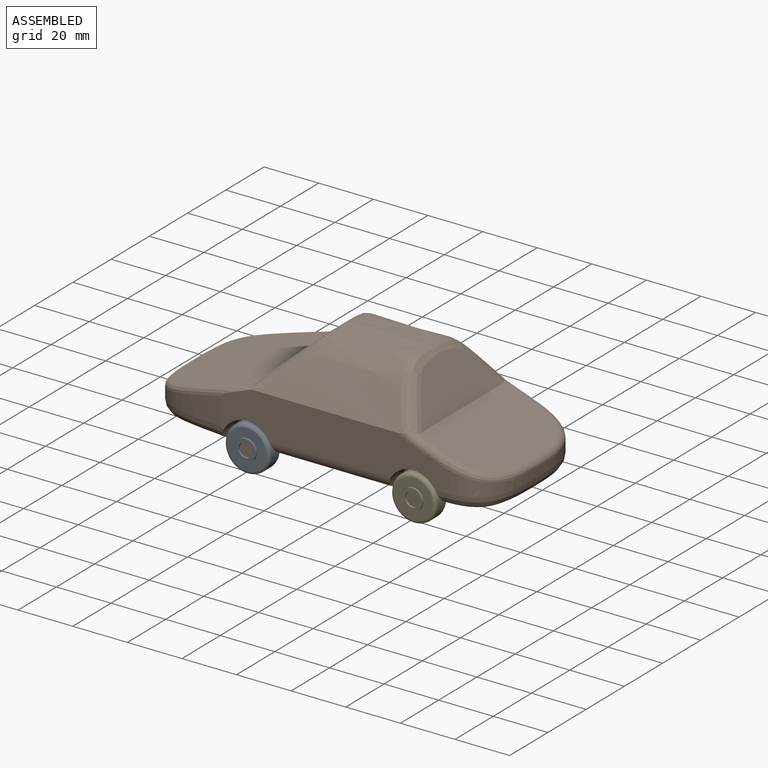
[diagram: assembled view]
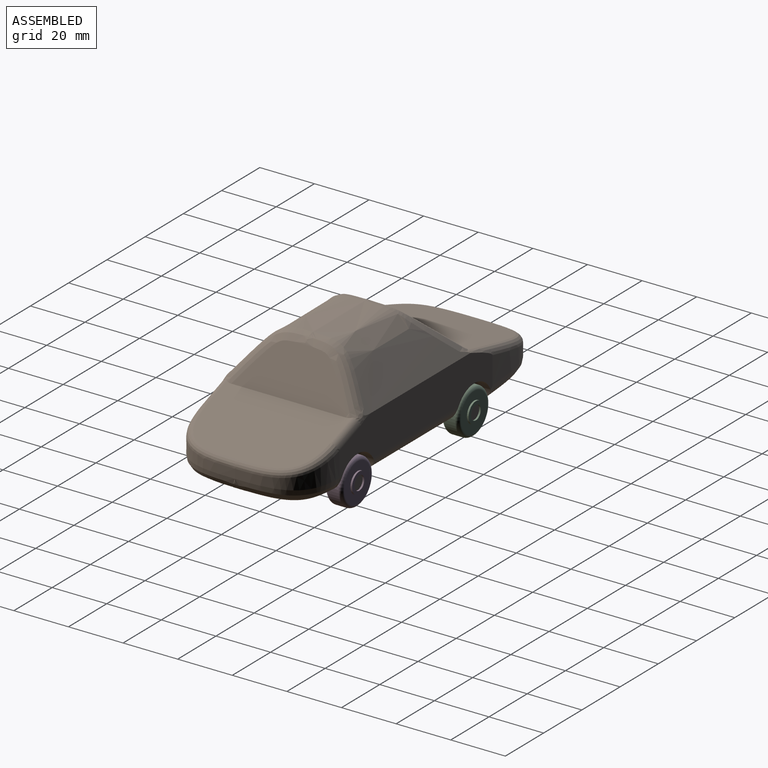
[diagram: assembled view, second angle]
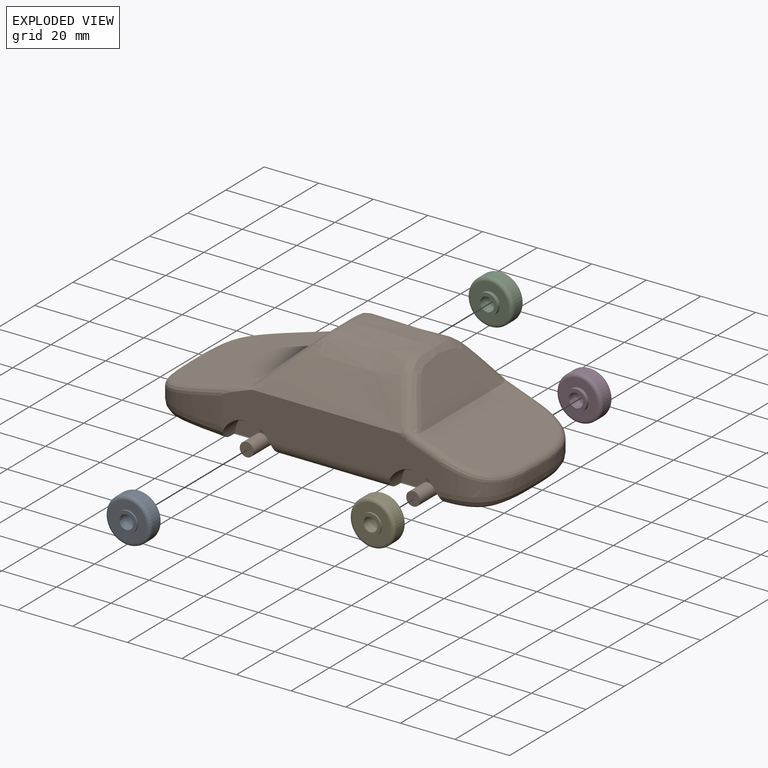
[diagram: exploded view]
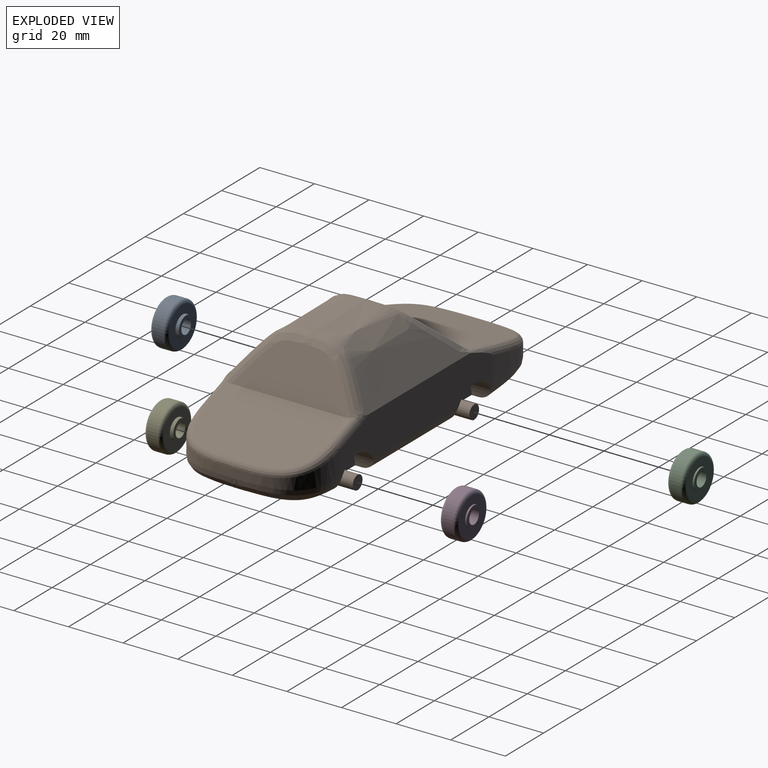
[diagram: exploded view, second angle]
ASSEMBLY  parts=5 mates=8
PART A: 10 faces, bbox 17.9x8.3x17.9 mm
  f0: cylinder r=8.26mm len=16.51mm, axis (0,1,0), area 197.6mm2, adj f8,f9
  f1: plane 13.97x13.97mm, normal (0,-1,0), area 107.7mm2, adj f5,f9
  f2: plane 13.97x13.97mm, normal (0,1,0), area 107.7mm2, adj f3,f8
  f3: cylinder r=3.81mm len=7.62mm, axis (0,1,0), area 15.2mm2, adj f2,f7
  f4: cylinder r=2.54mm len=8.26mm, axis (0,1,0), area 131.7mm2, adj f6,f7
  f5: cylinder r=3.81mm len=7.62mm, axis (0,1,0), area 30.4mm2, adj f1,f6
  f6: plane 7.62x7.62mm, normal (0,-1,0), area 25.3mm2, adj f4,f5
  f7: plane 7.62x7.62mm, normal (0,1,0), area 25.3mm2, adj f3,f4
  f8: torus R=6.99mm, axis (0,-1,0), area 97.7mm2, adj f0,f2
  f9: torus R=6.99mm, axis (0,-1,0), area 97.7mm2, adj f0,f1
PART B: 47 faces, bbox 128.1x60.2x41.8 mm
  f0: plane 40.64x20.32mm, normal (0,0,-1), area 732.3mm2, adj f9,f10,f13,f14,f20,f31,f32
  f1: plane 45.95x27mm, normal (0.34,0,0.94), area 1187.5mm2, adj f6,f35,f36,f40,f41,f42,f43
  f2: plane 81.12x17.26mm, normal (0,-1,0), area 1043.7mm2, adj f10,f12,f23,f26,f28,f30,f32,f34
  f3: plane 48.17x37.77mm, normal (-0.26,0,0.97), area 1585.9mm2, adj f7,f37,f38,f45,f46
  f4: plane 40.61x30.48mm, normal (0,0,-1), area 1102.9mm2, adj f11,f12,f15,f16,f17,f33,f34
  f5: plane 81.11x17.26mm, normal (0,1,0), area 1043.7mm2, adj f14,f16,f24,f25,f27,f29,f31,f33
  f6: plane 41.89x15.22mm, normal (0.87,0,0.5), area 520.3mm2, adj f1,f35,f36
  f7: plane 43.67x17.59mm, normal (-0.68,0,0.73), area 736.9mm2, adj f3,f37,f38
  f8: plane 55.88x40.64mm, normal (0,0,-1), area 2200mm2, adj f9,f10,f11,f12,f13,f14,f15,f16
  f9: plane 19.05x9.53mm, normal (0,-1,0), area 132.4mm2, adj f0,f8,f10,f20
  f10: cylinder r=9.53mm len=19.05mm, axis (0,-1,0), area 216.8mm2, adj f0,f2,f8,f9,f30,f32
  f11: plane 19.05x9.53mm, normal (0,-1,0), area 132.4mm2, adj f4,f8,f12,f17
  f12: cylinder r=9.53mm len=19.05mm, axis (0,-1,0), area 211.4mm2, adj f2,f4,f8,f11,f30,f34
  f13: plane 19.05x9.53mm, normal (0,1,0), area 132.4mm2, adj f0,f8,f14,f20
  f14: cylinder r=9.53mm len=19.05mm, axis (0,-1,0), area 216.8mm2, adj f0,f5,f8,f13,f29,f31
  f15: plane 19.05x9.53mm, normal (0,1,0), area 132.4mm2, adj f4,f8,f16,f17
  f16: cylinder r=9.53mm len=19.05mm, axis (0,-1,0), area 211.4mm2, adj f4,f5,f8,f15,f29,f33
  f17: cylinder r=2.54mm len=50.8mm, axis (0,1,0), area 527mm2, adj f4,f8,f11,f15,f18,f19
  f18: plane 5.08x5.08mm, normal (0,-1,0), area 20.3mm2, adj f17
  f19: plane 5.08x5.08mm, normal (0,1,0), area 20.3mm2, adj f17
  f20: cylinder r=2.54mm len=50.8mm, axis (0,1,0), area 527mm2, adj f0,f8,f9,f13,f21,f22
  f21: plane 5.08x5.08mm, normal (0,-1,0), area 20.3mm2, adj f20
  f22: plane 5.08x5.08mm, normal (0,1,0), area 20.3mm2, adj f20
  f23: extruded ~55.39x25.4mm, area 1163.5mm2, adj f2,f24,f35,f37,f39,f46
  f24: extruded ~55.39x25.4mm, area 1163.5mm2, adj f5,f23,f36,f38,f44,f45
  f25: extruded ~28.58x25.4mm, area 243.9mm2, adj f5,f26,f33,f45
  f26: extruded ~28.58x25.4mm, area 243.9mm2, adj f2,f25,f34,f46
  f27: extruded ~25.4x18.42mm, area 180.2mm2, adj f5,f28,f31,f42
  f28: extruded ~25.4x18.42mm, area 180.2mm2, adj f2,f27,f32,f41
  f29: cylinder r=5.08mm len=44.85mm, axis (1,0,0), area 346.1mm2, adj f5,f8,f14,f16
  f30: cylinder r=5.08mm len=44.85mm, axis (-1,0,0), area 346.1mm2, adj f2,f8,f10,f12
  f31: bspline ~36.68x21.05mm, area 276.1mm2, adj f0,f5,f14,f27,f32
  f32: bspline ~36.68x21.05mm, area 276.1mm2, adj f0,f2,f10,f28,f31
  f33: bspline ~44.35x31.6mm, area 346.4mm2, adj f4,f5,f16,f25,f34
  f34: bspline ~44.35x31.6mm, area 346.4mm2, adj f2,f4,f12,f26,f33
  f35: bspline ~27.65x20.01mm, area 190.2mm2, adj f1,f6,f23,f36,f39
  f36: bspline ~27.65x20.01mm, area 190.2mm2, adj f1,f6,f24,f35,f44
  f37: bspline ~31.01x26.33mm, area 183.1mm2, adj f3,f7,f23,f38,f46
  f38: bspline ~31.01x26.33mm, area 183.1mm2, adj f3,f7,f24,f37,f45
  f39: bspline ~7.54x4.91mm, area 11.1mm2, adj f2,f23,f35,f40
  f40: cylinder r=2.54mm len=11.76mm, axis (0.94,0,-0.34), area 46.2mm2, adj f1,f2,f39,f41
  f41: bspline ~31.89x18.67mm, area 121.5mm2, adj f1,f28,f40,f42
  f42: bspline ~31.89x18.67mm, area 121.5mm2, adj f1,f27,f41,f43
  f43: cylinder r=2.54mm len=11.76mm, axis (-0.94,0,0.34), area 46.2mm2, adj f1,f5,f42,f44
  f44: bspline ~6.66x4.59mm, area 11.1mm2, adj f5,f24,f36,f43
  f45: bspline ~77.03x46.37mm, area 201.8mm2, adj f3,f5,f24,f25,f38,f46
  f46: bspline ~77.03x46.37mm, area 201.8mm2, adj f2,f3,f23,f26,f37,f45
PART C: same geometry as A
PART D: same geometry as A
PART E: same geometry as A
PLACE A rot(axis=(0,0,-1),180deg) t=(-36.35,-5.67,-37.74)mm
PLACE B t=(-74.45,45.13,-37.74)mm
PLACE C t=(-36.35,45.13,-37.74)mm
PLACE D t=(24.61,45.13,-37.74)mm
PLACE E rot(axis=(0,0,-1),180deg) t=(24.61,-5.67,-37.74)mm
MATE cylindrical A.f4 <-> B.f17  axis (0,-1,0) through (-36.35,-6.31,-37.74)mm
MATE fastened C.f4 <-> B.f17  axis (0,-1,0) through (-36.35,37.51,-37.74)mm
MATE cylindrical C.f4 <-> B.f17  axis (0,1,0) through (-36.35,41.63,-37.74)mm
MATE fastened B.f20 <-> D.f4  axis (0,1,0) through (24.61,37.51,-37.74)mm
MATE cylindrical D.f4 <-> B.f20  axis (0,1,0) through (24.61,45.76,-37.74)mm
MATE fastened E.f4 <-> B.f20  axis (0,1,0) through (24.61,1.95,-37.74)mm
MATE fastened A.f3 <-> B.f17  axis (0,1,0) through (-36.35,1.95,-37.74)mm
MATE cylindrical B.f20 <-> E.f4  axis (0,1,0) through (24.61,-5.67,-37.74)mm
